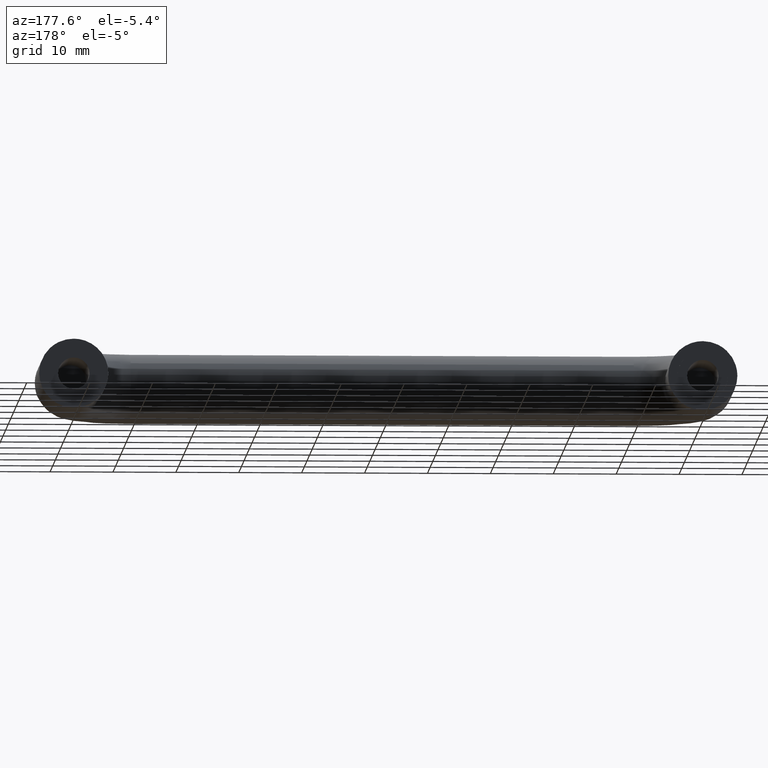
[diagram: clean part render]
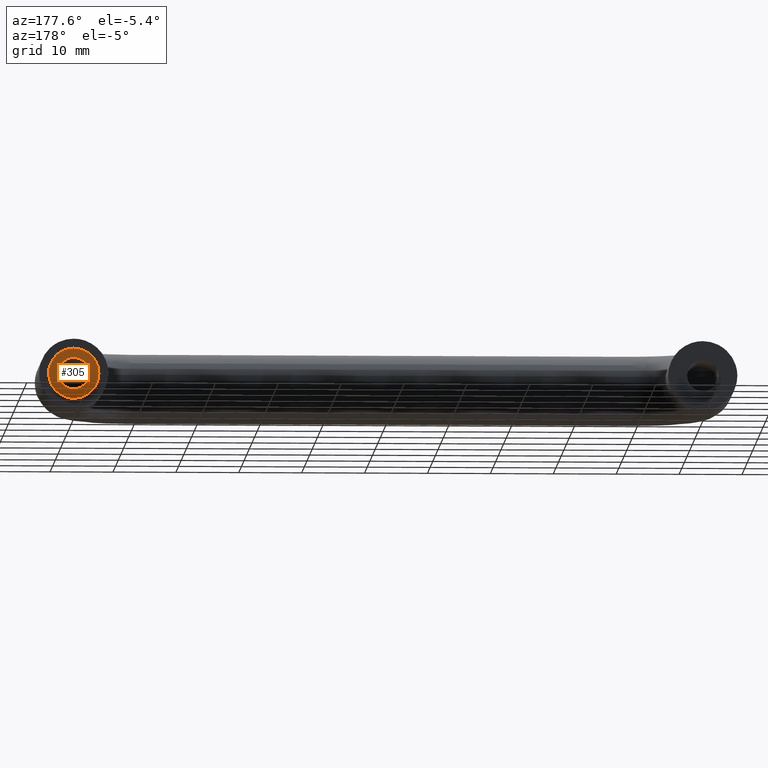
[diagram: same view with one face highlighted and labeled with its STEP entity id]
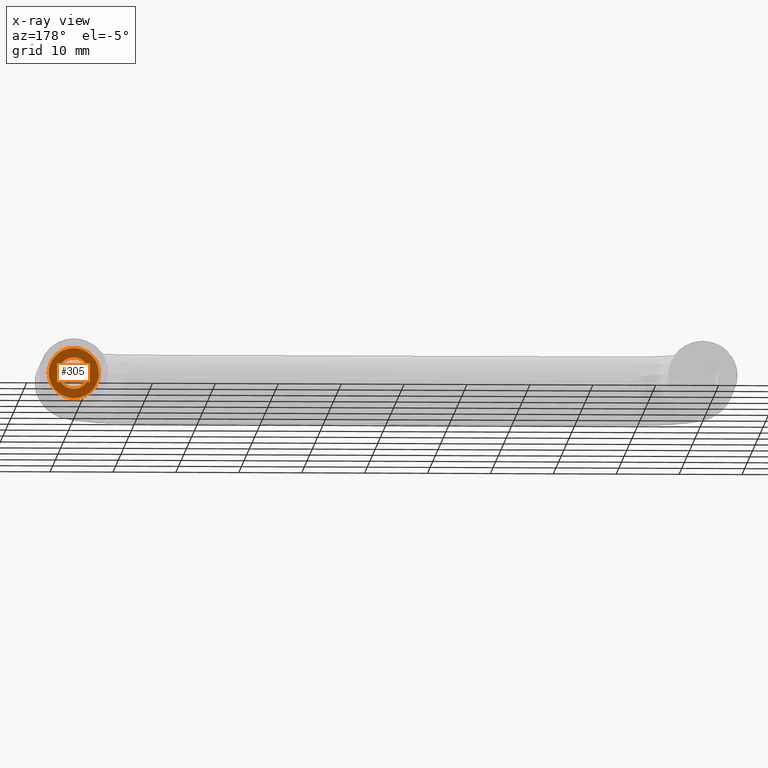
[diagram: x-ray of the same camera — body ghosted, the highlighted face saturated]
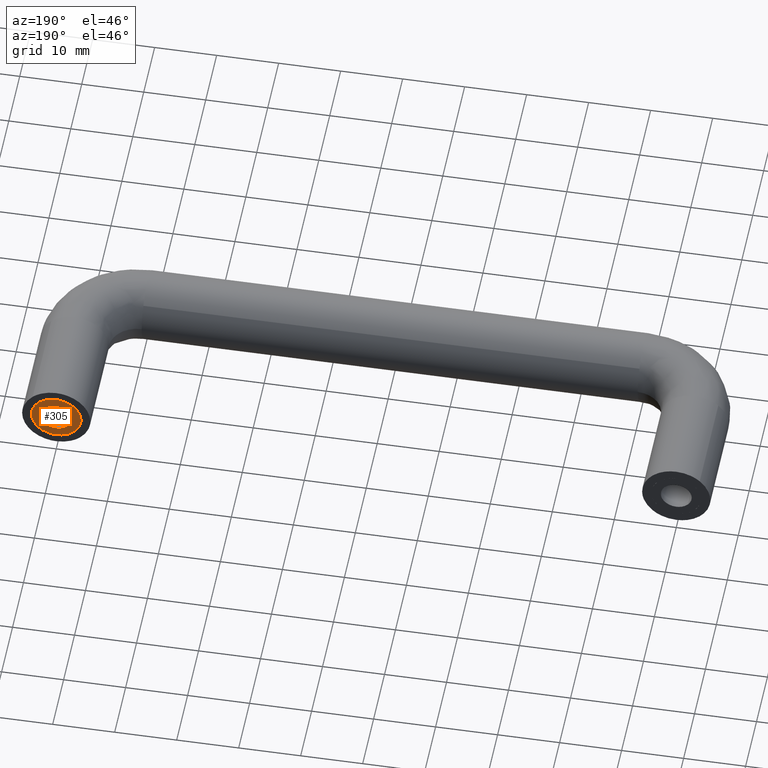
[diagram: same view with one face highlighted and labeled with its STEP entity id]
A machine part, auxiliary view. The second image highlights one B-rep face of the part: STEP entity #305.
The next image is the same camera in x-ray: the body ghosted, the highlighted face saturated — about 0% of this face is hidden behind the body in this view.
A second angle (auxiliary view) of the same face is appended — the face is thin or edge-on in the first view.
In plain terms, the highlighted face is a freeform B-spline surface patch.
Its self-contained STEP definition (entity closure, byte-faithful):
#103=CARTESIAN_POINT('',(101.872389292820500,1.110223E-016,1.656550123862543));
#104=VERTEX_POINT('',#103);
#110=CARTESIAN_POINT('',(102.500000000000000,0.0,-0.000000018749494));
#111=VERTEX_POINT('',#110);
#112=CARTESIAN_POINT('',(102.500000000000000,0.0,-0.000000018749494));
#113=CARTESIAN_POINT('',(102.500105531181900,1.643511E-017,0.245226279814256));
#114=CARTESIAN_POINT('',(102.441232564398210,4.297758E-017,0.641263242086262));
#115=CARTESIAN_POINT('',(102.213706662656510,8.062632E-017,1.203015401405369));
#116=CARTESIAN_POINT('',(102.009922795630400,1.006097E-016,1.501185241339156));
#117=CARTESIAN_POINT('',(101.872389292820500,1.110223E-016,1.656550123862543));
#118=B_SPLINE_CURVE_WITH_KNOTS('',3,(#112,#113,#114,#115,#116,#117),.UNSPECIFIED.,.F.,.U.,(4,1,1,4),(0.000000029282746,0.735654484812881,1.188342691599673,1.810817771725037),.UNSPECIFIED.);
#119=EDGE_CURVE('',#111,#104,#118,.T.);
#121=CARTESIAN_POINT('',(100.0,0.0,-2.500000000000000));
#122=VERTEX_POINT('',#121);
#123=CARTESIAN_POINT('',(100.0,0.0,-2.500000000000000));
#124=CARTESIAN_POINT('',(100.265914083677700,0.0,-2.500166069318481));
#125=CARTESIAN_POINT('',(100.674861269878410,0.0,-2.434084082213104));
#126=CARTESIAN_POINT('',(101.222029556281400,0.0,-2.199485446180041));
#127=CARTESIAN_POINT('',(101.731263075258990,0.0,-1.850389685133938));
#128=CARTESIAN_POINT('',(102.139377997869100,0.0,-1.353003885449745));
#129=CARTESIAN_POINT('',(102.430786912100700,0.0,-0.695305431158469));
#130=CARTESIAN_POINT('',(102.500145714968990,0.0,-0.265909843855633));
#131=CARTESIAN_POINT('',(102.500000000000000,0.0,-0.000000018749494));
#132=B_SPLINE_CURVE_WITH_KNOTS('',3,(#123,#124,#125,#126,#127,#128,#129,#130,#131),.UNSPECIFIED.,.F.,.U.,(4,1,1,1,1,1,4),(0.000000101182029,0.797683336007543,1.227217574967160,1.779487343443204,2.638511850011565,3.129405102772399,3.927089350271826),.UNSPECIFIED.);
#133=EDGE_CURVE('',#122,#111,#132,.T.);
#135=CARTESIAN_POINT('',(98.127610707179514,-6.383782E-016,-1.656550123862539));
#136=VERTEX_POINT('',#135);
#137=CARTESIAN_POINT('',(98.127610707179514,-6.383782E-016,-1.656550123862539));
#138=CARTESIAN_POINT('',(98.288218603714085,-5.836201E-016,-1.838236985258194));
#139=CARTESIAN_POINT('',(98.577736650912328,-4.849109E-016,-2.082345927633072));
#140=CARTESIAN_POINT('',(99.206654863379256,-2.704856E-016,-2.406777463186577));
#141=CARTESIAN_POINT('',(99.669263697011800,-1.127623E-016,-2.500387142940817));
#142=CARTESIAN_POINT('',(100.0,0.0,-2.500000000000000));
#143=B_SPLINE_CURVE_WITH_KNOTS('',3,(#137,#138,#139,#140,#141,#142),.UNSPECIFIED.,.F.,.U.,(4,1,1,4),(0.000000022068111,0.727469326061129,1.124269757127603,2.116273390658585),.UNSPECIFIED.);
#144=EDGE_CURVE('',#136,#122,#143,.T.);
#178=CARTESIAN_POINT('',(97.500000000000000,0.0,0.000000018749510));
#179=VERTEX_POINT('',#178);
#180=CARTESIAN_POINT('',(97.500000000000000,0.0,0.000000018749510));
#181=CARTESIAN_POINT('',(97.499892541034285,-9.450255E-017,-0.245227965464910));
#182=CARTESIAN_POINT('',(97.558773592152960,-2.471198E-016,-0.641259788081966));
#183=CARTESIAN_POINT('',(97.786283327685339,-4.636033E-016,-1.203020456475161));
#184=CARTESIAN_POINT('',(97.990086606650124,-5.785041E-016,-1.501180616158337));
#185=CARTESIAN_POINT('',(98.127610707179514,-6.383782E-016,-1.656550123862539));
#186=B_SPLINE_CURVE_WITH_KNOTS('',3,(#180,#181,#182,#183,#184,#185),.UNSPECIFIED.,.F.,.U.,(4,1,1,4),(0.000000029282003,0.735654484812457,1.188342691599446,1.810817771725021),.UNSPECIFIED.);
#187=EDGE_CURVE('',#179,#136,#186,.T.);
#189=CARTESIAN_POINT('',(100.0,0.0,2.500000000000000));
#190=VERTEX_POINT('',#189);
#191=CARTESIAN_POINT('',(100.0,0.0,2.500000000000000));
#192=CARTESIAN_POINT('',(99.672701217596838,0.0,2.500293066934744));
#193=CARTESIAN_POINT('',(99.161632715345547,0.0,2.398164771790233));
#194=CARTESIAN_POINT('',(98.566758746235408,0.0,2.070538188264338));
#195=CARTESIAN_POINT('',(98.146566758245200,0.0,1.708125317935948));
#196=CARTESIAN_POINT('',(97.827391585574361,0.0,1.277791652218414));
#197=CARTESIAN_POINT('',(97.569203179222555,0.0,0.695310027836993));
#198=CARTESIAN_POINT('',(97.499860359200454,0.0,0.265910712470127));
#199=CARTESIAN_POINT('',(97.500000000000000,0.0,0.000000018749510));
#200=B_SPLINE_CURVE_WITH_KNOTS('',3,(#191,#192,#193,#194,#195,#196,#197,#198,#199),.UNSPECIFIED.,.F.,.U.,(4,1,1,1,1,1,4),(0.000000101185619,0.981772785161230,1.534044534915891,2.024894217578246,2.638511850011577,3.129405102772310,3.927089350271620),.UNSPECIFIED.);
#201=EDGE_CURVE('',#190,#179,#200,.T.);
#203=CARTESIAN_POINT('',(101.872389292820500,1.110223E-016,1.656550123862543));
#204=CARTESIAN_POINT('',(101.740959613185500,1.032293E-016,1.805173278617729));
#205=CARTESIAN_POINT('',(101.459035770414200,8.651273E-017,2.056062337538307));
#206=CARTESIAN_POINT('',(100.837423287506500,4.965456E-017,2.397874829847943));
#207=CARTESIAN_POINT('',(100.330730543270410,1.961049E-017,2.500385603805183));
#208=CARTESIAN_POINT('',(100.0,0.0,2.500000000000000));
#209=B_SPLINE_CURVE_WITH_KNOTS('',3,(#203,#204,#205,#206,#207,#208),.UNSPECIFIED.,.F.,.U.,(4,1,1,4),(0.000000022066780,0.595201949680415,1.124269757126563,2.116273390658582),.UNSPECIFIED.);
#210=EDGE_CURVE('',#104,#190,#209,.T.);
#216=CARTESIAN_POINT('',(95.600400015505841,0.0,4.399599984494448));
#217=CARTESIAN_POINT('',(95.600400015505841,0.0,-4.399600199071169));
#218=CARTESIAN_POINT('',(104.399600199070900,0.0,4.399599984494448));
#219=CARTESIAN_POINT('',(104.399600199070900,0.0,-4.399600199071169));
#220=B_SPLINE_SURFACE_WITH_KNOTS('',1,1,((#216,#218),(#217,#219)),.UNSPECIFIED.,.F.,.F.,.U.,(2,2),(2,2),(0.0,8.799200183565617),(0.0,8.799200183565091),.UNSPECIFIED.);
#221=CARTESIAN_POINT('',(100.0,0.0,4.0));
#222=VERTEX_POINT('',#221);
#223=CARTESIAN_POINT('',(102.753418111649200,-1.942890E-015,2.901497174623629));
#224=VERTEX_POINT('',#223);
#225=CARTESIAN_POINT('',(100.0,0.0,4.0));
#226=CARTESIAN_POINT('',(100.221431538844800,-1.562484E-016,3.999987454808651));
#227=CARTESIAN_POINT('',(100.838343000357800,-5.915587E-016,3.948813911400373));
#228=CARTESIAN_POINT('',(101.811610103537010,-1.278324E-015,3.632329566727931));
#229=CARTESIAN_POINT('',(102.466688588507490,-1.740566E-015,3.173815434783375));
#230=CARTESIAN_POINT('',(102.753418111649200,-1.942890E-015,2.901497174623629));
#231=B_SPLINE_CURVE_WITH_KNOTS('',3,(#225,#226,#227,#228,#229,#230),.UNSPECIFIED.,.F.,.U.,(4,1,1,4),(0.000000030348738,0.664318452447697,1.850602729410989,3.036890643650497),.UNSPECIFIED.);
#232=EDGE_CURVE('',#222,#224,#231,.T.);
#233=ORIENTED_EDGE('',*,*,#232,.T.);
#234=CARTESIAN_POINT('',(103.999999999999800,0.0,-0.000001426000835));
#235=VERTEX_POINT('',#234);
#236=CARTESIAN_POINT('',(102.753418111649200,-1.942890E-015,2.901497174623629));
#237=CARTESIAN_POINT('',(103.060195470682600,-1.748142E-015,2.610661497147499));
#238=CARTESIAN_POINT('',(103.538469773027900,-1.329176E-015,1.984979930100387));
#239=CARTESIAN_POINT('',(103.924442798113700,-6.453328E-016,0.963733883961093));
#240=CARTESIAN_POINT('',(104.000044992235600,-2.037943E-016,0.304343541884375));
#241=CARTESIAN_POINT('',(103.999999999999800,0.0,-0.000001426000835));
#242=B_SPLINE_CURVE_WITH_KNOTS('',3,(#236,#237,#238,#239,#240,#241),.UNSPECIFIED.,.F.,.U.,(4,1,1,4),(0.000000037459138,1.268106828089680,2.333301282785416,3.246335365620190),.UNSPECIFIED.);
#243=EDGE_CURVE('',#224,#235,#242,.T.);
#244=ORIENTED_EDGE('',*,*,#243,.T.);
#245=CARTESIAN_POINT('',(100.0,0.0,-4.0));
#246=VERTEX_POINT('',#245);
#247=CARTESIAN_POINT('',(103.999999999999800,0.0,-0.000001426000835));
#248=CARTESIAN_POINT('',(104.000171484289100,0.0,-0.409072092246370));
#249=CARTESIAN_POINT('',(103.886079250090110,0.0,-1.145304450320056));
#250=CARTESIAN_POINT('',(103.480946659577200,0.0,-2.029577721990739));
#251=CARTESIAN_POINT('',(102.962428638882600,0.0,-2.728711504976924));
#252=CARTESIAN_POINT('',(102.324224417665210,0.0,-3.300133891039468));
#253=CARTESIAN_POINT('',(101.585662879637000,0.0,-3.700679822749502));
#254=CARTESIAN_POINT('',(100.801732025538800,0.0,-3.943709693307490));
#255=CARTESIAN_POINT('',(100.294522413474500,0.0,-4.000055432058498));
#256=CARTESIAN_POINT('',(100.0,0.0,-4.0));
#257=B_SPLINE_CURVE_WITH_KNOTS('',3,(#247,#248,#249,#250,#251,#252,#253,#254,#255,#256),.UNSPECIFIED.,.F.,.U.,(4,1,1,1,1,1,1,4),(0.000000132116014,1.227189706566425,2.208960013559004,2.896173976735819,3.828824524866918,4.761506263113915,5.399665454887999,6.283223927788745),.UNSPECIFIED.);
#258=EDGE_CURVE('',#235,#246,#257,.T.);
#259=ORIENTED_EDGE('',*,*,#258,.T.);
#260=CARTESIAN_POINT('',(97.246581889008226,5.551115E-017,-2.901497175247512));
#261=VERTEX_POINT('',#260);
#262=CARTESIAN_POINT('',(100.0,0.0,-4.0));
#263=CARTESIAN_POINT('',(99.778563410205550,4.464342E-018,-4.000005813589698));
#264=CARTESIAN_POINT('',(99.240780692913518,1.530648E-017,-3.955277405913724));
#265=CARTESIAN_POINT('',(98.262353130349226,3.503238E-017,-3.669027908223443));
#266=CARTESIAN_POINT('',(97.590551156146802,4.857645E-017,-3.228455776361368));
#267=CARTESIAN_POINT('',(97.246581889008226,5.551115E-017,-2.901497175247512));
#268=B_SPLINE_CURVE_WITH_KNOTS('',3,(#262,#263,#264,#265,#266,#267),.UNSPECIFIED.,.F.,.U.,(4,1,1,4),(0.000000030343955,0.664318452245623,1.613340071790764,3.036890642744169),.UNSPECIFIED.);
#269=EDGE_CURVE('',#246,#261,#268,.T.);
#270=ORIENTED_EDGE('',*,*,#269,.T.);
#271=CARTESIAN_POINT('',(96.000000000000256,0.0,0.000001426000835));
#272=VERTEX_POINT('',#271);
#273=CARTESIAN_POINT('',(97.246581889008226,5.551115E-017,-2.901497175247512));
#274=CARTESIAN_POINT('',(96.976677682500693,5.061404E-017,-2.645530971956668));
#275=CARTESIAN_POINT('',(96.487761396934815,3.885451E-017,-2.030875065841393));
#276=CARTESIAN_POINT('',(96.081271613808838,1.940963E-017,-1.014515798993725));
#277=CARTESIAN_POINT('',(95.999975725915050,5.822480E-018,-0.304332273978355));
#278=CARTESIAN_POINT('',(96.000000000000256,0.0,0.000001426000835));
#279=B_SPLINE_CURVE_WITH_KNOTS('',3,(#273,#274,#275,#276,#277,#278),.UNSPECIFIED.,.F.,.U.,(4,1,1,4),(0.000000037473836,1.115929703092345,2.333301283441040,3.246335366526390),.UNSPECIFIED.);
#280=EDGE_CURVE('',#261,#272,#279,.T.);
#281=ORIENTED_EDGE('',*,*,#280,.T.);
#282=CARTESIAN_POINT('',(96.000000000000256,0.0,0.000001426000835));
#283=CARTESIAN_POINT('',(95.999711176029237,0.0,0.441819441354698));
#284=CARTESIAN_POINT('',(96.128754014541812,0.0,1.210683434266613));
#285=CARTESIAN_POINT('',(96.562679696308848,0.0,2.099587418196538));
#286=CARTESIAN_POINT('',(97.073677414133044,0.0,2.762703323464853));
#287=CARTESIAN_POINT('',(97.566973088432349,0.0,3.198879506465597));
#288=CARTESIAN_POINT('',(98.178508694087000,0.0,3.580893376968627));
#289=CARTESIAN_POINT('',(98.936521449176936,0.0,3.900370548957419));
#290=CARTESIAN_POINT('',(99.607281760801044,0.0,4.000182621471285));
#291=CARTESIAN_POINT('',(100.0,0.0,4.0));
#292=B_SPLINE_CURVE_WITH_KNOTS('',3,(#282,#283,#284,#285,#286,#287,#288,#289,#290,#291),.UNSPECIFIED.,.F.,.U.,(4,1,1,1,1,1,1,4),(0.000000132105799,1.325363510258710,2.307128386408820,2.945296607910619,3.828824524864974,4.270617153155700,5.105122746567529,6.283223927788728),.UNSPECIFIED.);
#293=EDGE_CURVE('',#272,#222,#292,.T.);
#294=ORIENTED_EDGE('',*,*,#293,.T.);
#295=EDGE_LOOP('',(#233,#244,#259,#270,#281,#294));
#296=FACE_OUTER_BOUND('',#295,.T.);
#297=ORIENTED_EDGE('',*,*,#201,.T.);
#298=ORIENTED_EDGE('',*,*,#187,.T.);
#299=ORIENTED_EDGE('',*,*,#144,.T.);
#300=ORIENTED_EDGE('',*,*,#133,.T.);
#301=ORIENTED_EDGE('',*,*,#119,.T.);
#302=ORIENTED_EDGE('',*,*,#210,.T.);
#303=EDGE_LOOP('',(#297,#298,#299,#300,#301,#302));
#304=FACE_BOUND('',#303,.T.);
#305=ADVANCED_FACE('',(#296,#304),#220,.F.);